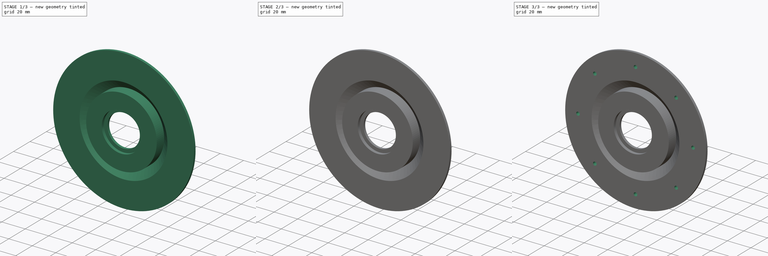
[diagram: build sequence overview — one tinted view per stage of 3, left to right]
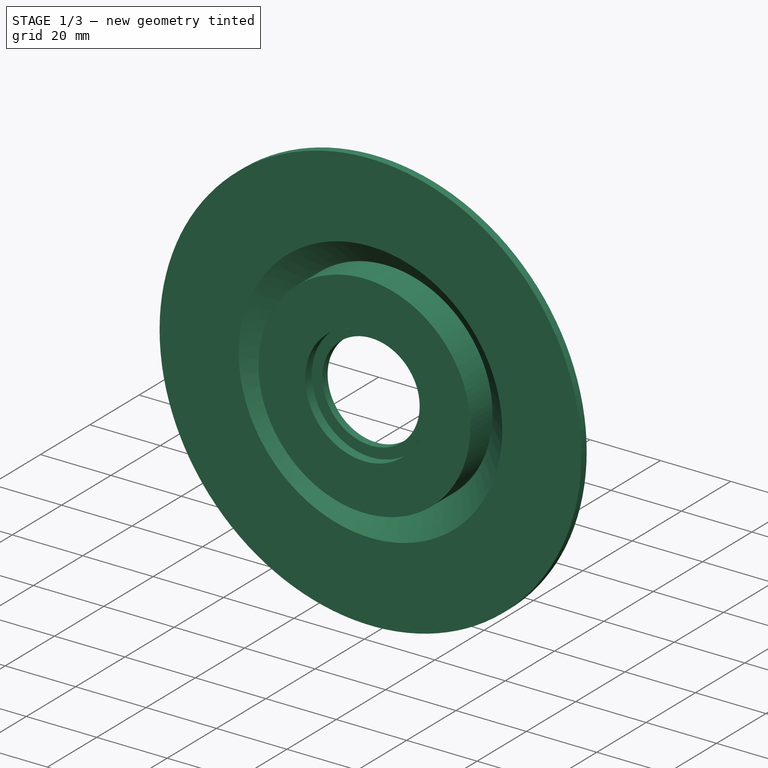
[diagram: stage 1 of 3 — iso view after this stage's code; geometry added in this stage tinted green]
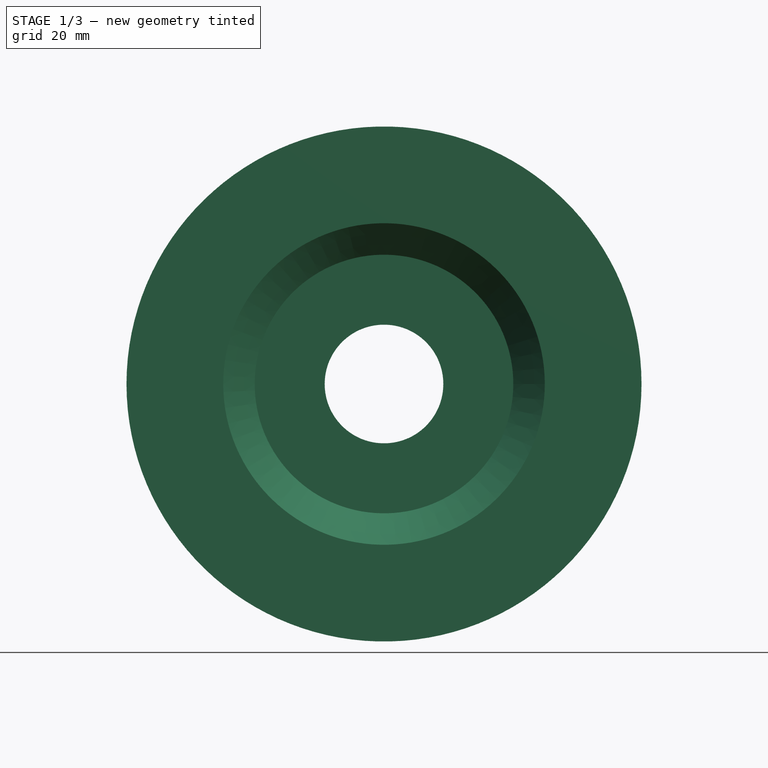
[diagram: stage 1 of 3 — front view after this stage's code; geometry added in this stage tinted green]
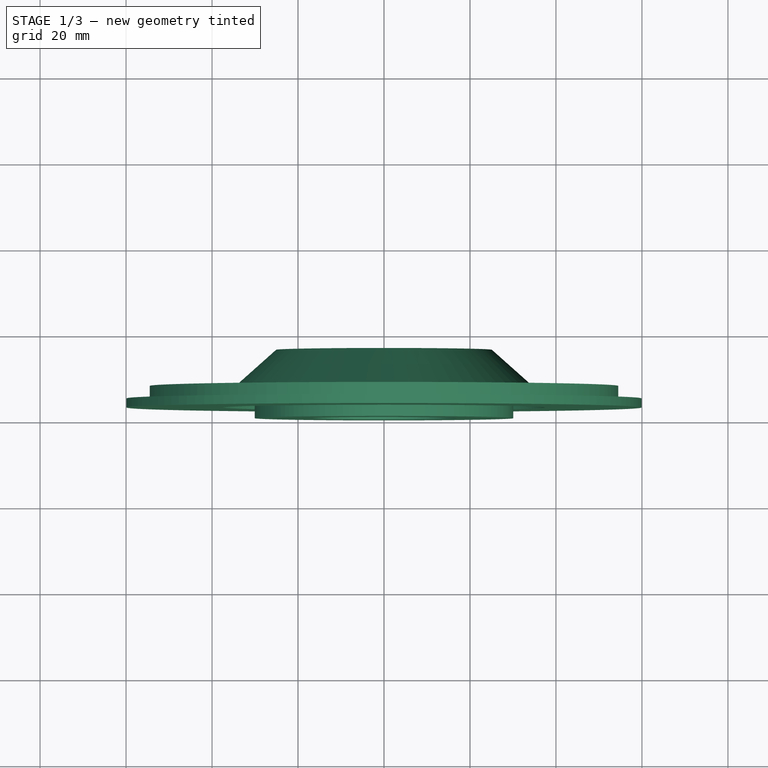
[diagram: stage 1 of 3 — top view after this stage's code; geometry added in this stage tinted green]
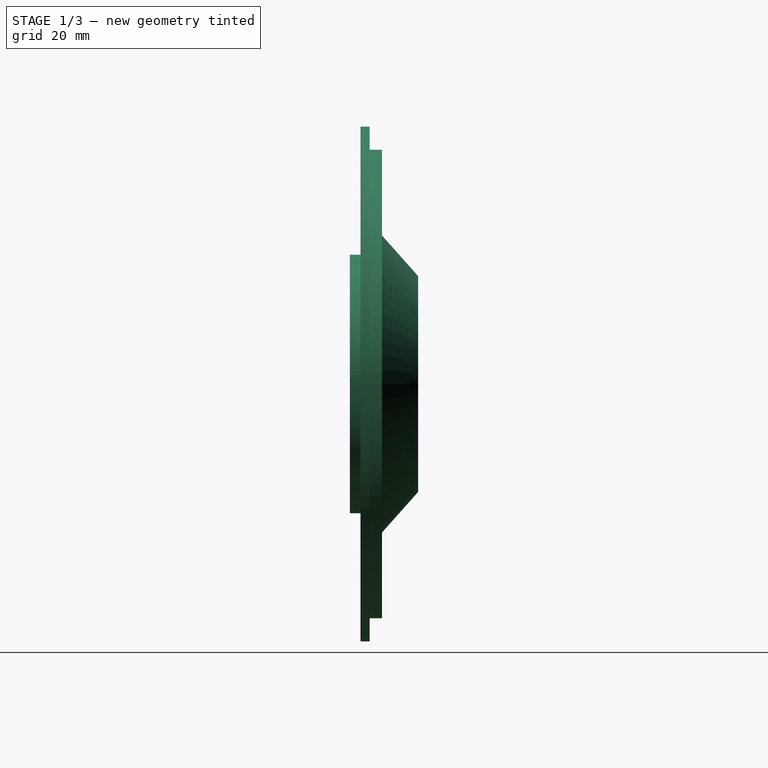
[diagram: stage 1 of 3 — right view after this stage's code; geometry added in this stage tinted green]
FCSTD DOCUMENT  (FreeCAD 0.22R35466 (Git))
Label: feeder-top_new
License: Creative Commons Attribution 4.0
LicenseURL: https://creativecommons.org/licenses/by/4.0/
objects: PartDesign::PolarPattern×2, Sketcher::SketchObject×1, PartDesign::Revolution×1, PartDesign::AdditiveCylinder×1, PartDesign::SubtractiveCylinder×1, PartDesign::Body×1, App::Part×1
note: 10 computed .brp shape members not serialized (recipe doc carries the construction recipe); baked Part::Feature solids carry a one-line shape summary decoded from their .brp

FEATURE [Sketcher::SketchObject] Sketch
  FullyConstrained = true
  MapMode = 5
  Support = -> [XY_Plane001]
  expr: Constraints[52] = 27.6 / 2
  sketch-geometry (18):
    g0: LineSegment StartX=13.8 StartY=2.7 StartZ=0 EndX=13.8 EndY=4.8 EndZ=0
    g1: LineSegment StartX=13.8 StartY=4.8 StartZ=0 EndX=15.9 EndY=4.8 EndZ=0
    g2: LineSegment StartX=15.9 StartY=4.8 StartZ=0 EndX=15.9 EndY=2.6 EndZ=0
    g3: LineSegment StartX=15.9 StartY=2.6 StartZ=0 EndX=25.1 EndY=2.6 EndZ=0
    g4: LineSegment StartX=25.1 StartY=2.6 StartZ=0 EndX=25.1 EndY=15.9 EndZ=0
    g5: LineSegment StartX=25.1 StartY=15.9 StartZ=0 EndX=37.7995 EndY=4.59855 EndZ=0
    g6: LineSegment StartX=37.7995 StartY=4.59855 StartZ=0 EndX=51.9995 EndY=4.59855 EndZ=0
    g7: LineSegment StartX=51.9995 StartY=4.59855 StartZ=0 EndX=51.9995 EndY=7.49855 EndZ=0
    g8: LineSegment StartX=51.9995 StartY=7.49855 StartZ=0 EndX=54.4995 EndY=7.49855 EndZ=0
    g9: LineSegment StartX=54.4995 StartY=7.49855 StartZ=0 EndX=54.4995 EndY=4.59855 EndZ=0
    g10: LineSegment StartX=54.4995 StartY=4.59855 StartZ=0 EndX=59.8995 EndY=4.59855 EndZ=0
    g11: LineSegment StartX=59.8995 StartY=4.59855 StartZ=0 EndX=59.8995 EndY=2.48505 EndZ=0
    g12: LineSegment StartX=59.8995 StartY=2.48505 StartZ=0 EndX=37.3995 EndY=2.48505 EndZ=0
    g13: LineSegment StartX=37.3995 StartY=2.48505 StartZ=0 EndX=30.0786 EndY=9 EndZ=0
    g14: LineSegment StartX=30.0786 StartY=9 StartZ=0 EndX=30.0786 EndY=0 EndZ=0
    g15: LineSegment StartX=30.0786 StartY=0 StartZ=0 EndX=16.8 EndY=0 EndZ=0
    g16: LineSegment StartX=16.8 StartY=0 StartZ=0 EndX=16.8 EndY=2.7 EndZ=0
    g17: LineSegment StartX=16.8 StartY=2.7 StartZ=0 EndX=13.8 EndY=2.7 EndZ=0
  constraints (54):
    c: Vertical(g0)
    c: Coincident(g0,g1)
    c: Horizontal(g1)
    c: Coincident(g1,g2)
    c: Vertical(g2)
    c: Coincident(g2,g3)
    c: Horizontal(g3)
    c: Coincident(g3,g4)
    c: Vertical(g4)
    c: Coincident(g4,g5)
    c: Coincident(g5,g6)
    c: Horizontal(g6)
    c: Coincident(g6,g7)
    c: Vertical(g7)
    c: Coincident(g7,g8)
    c: Horizontal(g8)
    c: Coincident(g8,g9)
    c: Vertical(g9)
    c: Coincident(g9,g10)
    c: Horizontal(g10)
    c: Coincident(g10,g11)
    c: Vertical(g11)
    c: Coincident(g11,g12)
    c: Horizontal(g12)
    c: Coincident(g12,g13)
    c: Coincident(g13,g14)
    c: Vertical(g14)
    c: DistanceY(g0,g0) = 2.1
    c: DistanceX(g1,g1) = 2.1
    c: DistanceY(g2,g2) = 2.2
    c: DistanceX(g3,g3) = 9.2
    c: DistanceY(g4,g4) = 13.3
    c: Distance(g5) = 17
    c: Distance(g0,g11) = 46.1
    c: DistanceX(g6,g6) = 14.2
    c: DistanceX(g8,g8) = 2.5
    c: DistanceX(g10,g10) = 5.4
    c: Equal(g9,g7)
    c: Distance(g13) = 9.8
    c: DistanceX(g12,g12) = 22.5
    c: Parallel(g13,g5)
    c: DistanceY(g14,g14) = 9
    c: Coincident(g15,g14)
    c: Horizontal(g15)
    c: Coincident(g16,g15)
    c: Vertical(g16)
    c: Coincident(g17,g16)
    c: Horizontal(g17)
    c: DistanceX(g17,g17) = 3
    c: DistanceY(g16,g16) = 2.7
    c: Coincident(g0,g17)
    c: DistanceY(g7,g7) = 2.9
    c: DistanceX(g-2,g0) = 13.8
    c: PointOnObject(g15,g-1)
FEATURE [PartDesign::Revolution] Revolution
  Angle = 360
  Angle2 = 60
  Axis = (0,1,0)
  Base = (0,0,0)
  Profile = -> Sketch
  ReferenceAxis = -> Sketch [V_Axis]
  Reversed = true
  Type = 0
FEATURE [PartDesign::AdditiveCylinder] Cylinder
  Angle = 360
  AttacherType = Attacher::AttachEngine3D
  AttachmentOffset = pos=(49,0,0) rot=(0,0,1;0rad)
  BaseFeature = -> Revolution
  FirstAngle = 0
  Height = 2.9
  MapMode = 5
  Placement = pos=(-49,4.59855,0) rot=(0,0.707107,0.707107;3.14159rad)
  Radius = 2
  SecondAngle = 0
  Support = -> [Revolution]
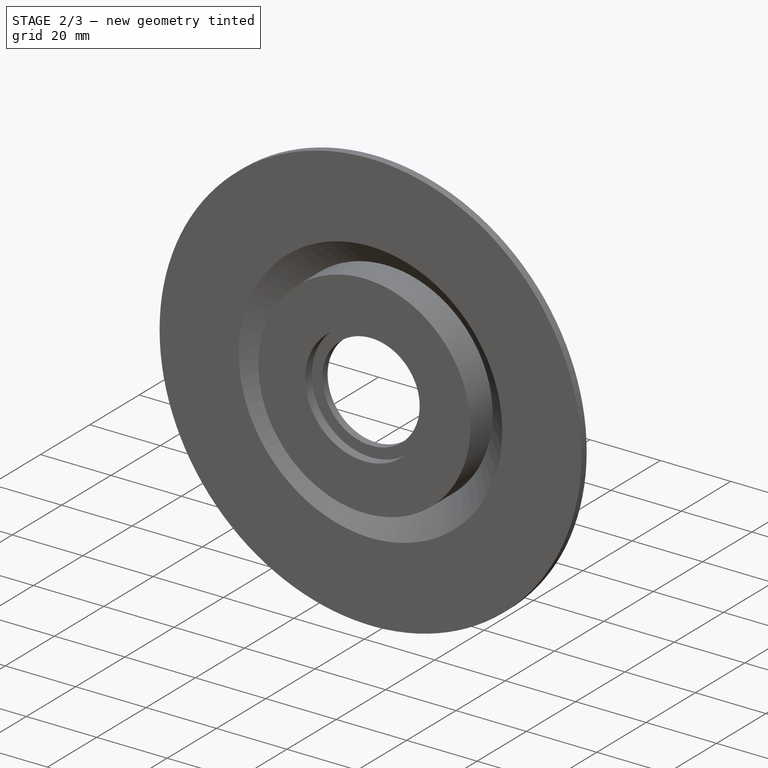
[diagram: stage 2 of 3 — iso view after this stage's code; geometry added in this stage tinted green]
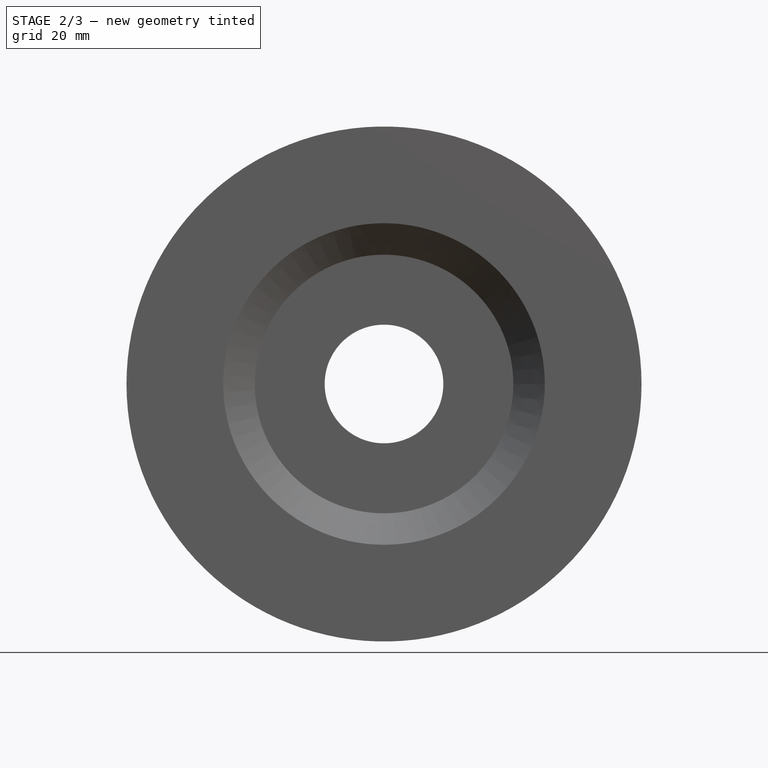
[diagram: stage 2 of 3 — front view after this stage's code; geometry added in this stage tinted green]
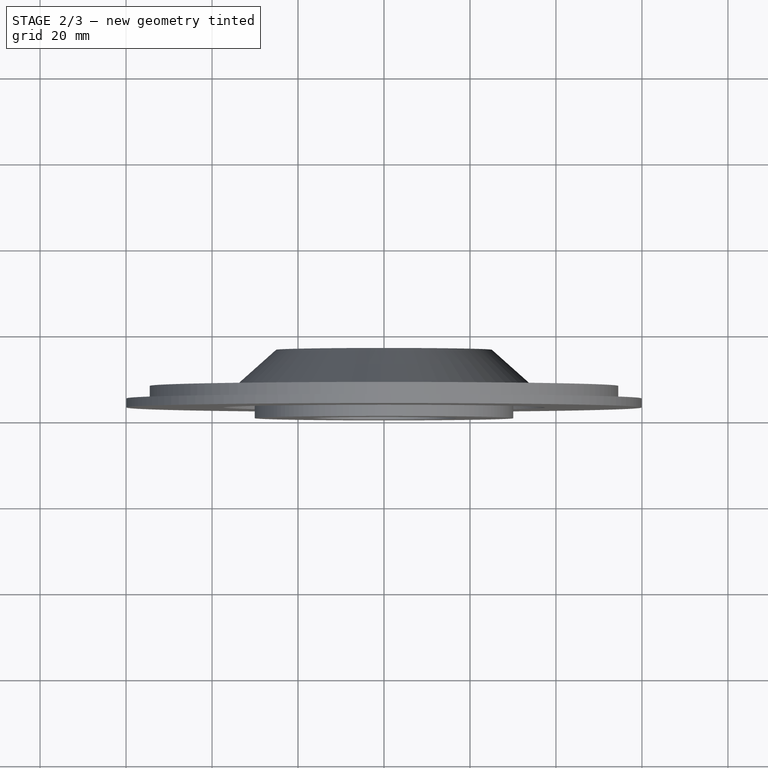
[diagram: stage 2 of 3 — top view after this stage's code; geometry added in this stage tinted green]
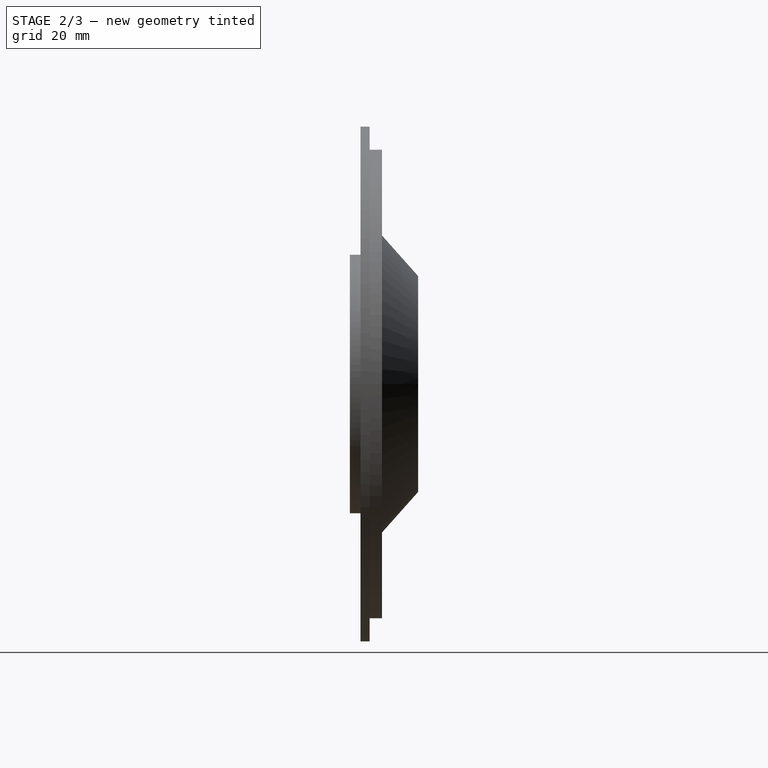
[diagram: stage 2 of 3 — right view after this stage's code; geometry added in this stage tinted green]
FEATURE [PartDesign::PolarPattern] PolarPattern
  Angle = 360
  Axis = -> Cylinder [Edge25]
  BaseFeature = -> Cylinder
  Mode = 0
  Occurrences = 8
  Offset = 120
  Originals = -> [Cylinder]
  Placement = pos=(-49,4.59855,0) rot=(0,0.707107,0.707107;3.14159rad)
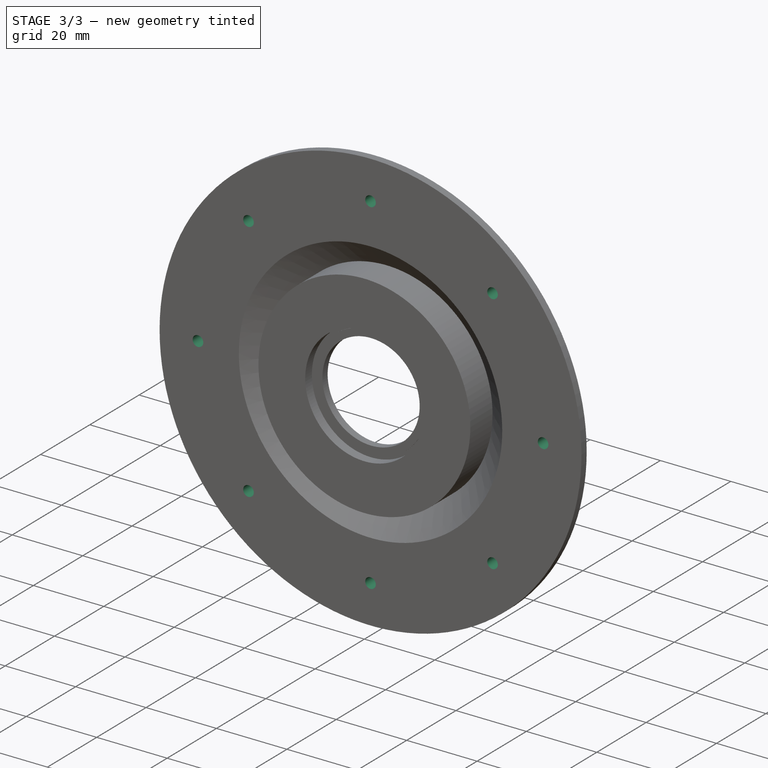
[diagram: stage 3 of 3 — iso view after this stage's code; geometry added in this stage tinted green]
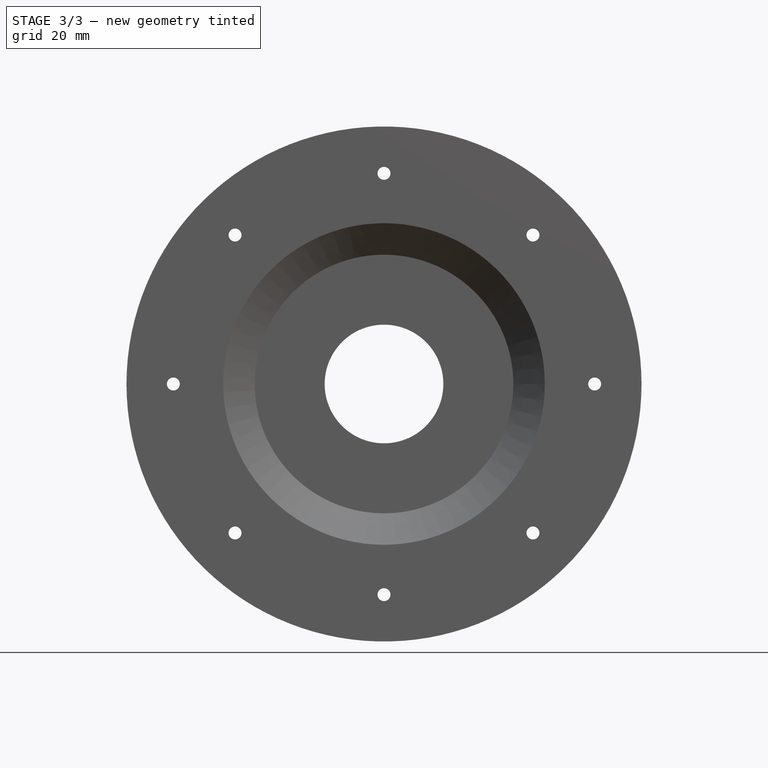
[diagram: stage 3 of 3 — front view after this stage's code; geometry added in this stage tinted green]
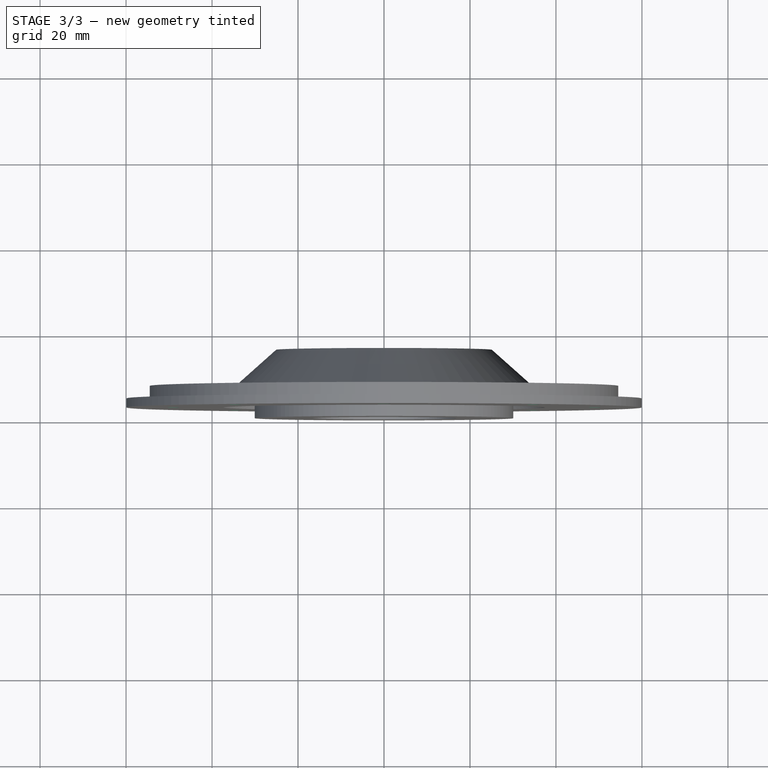
[diagram: stage 3 of 3 — top view after this stage's code; geometry added in this stage tinted green]
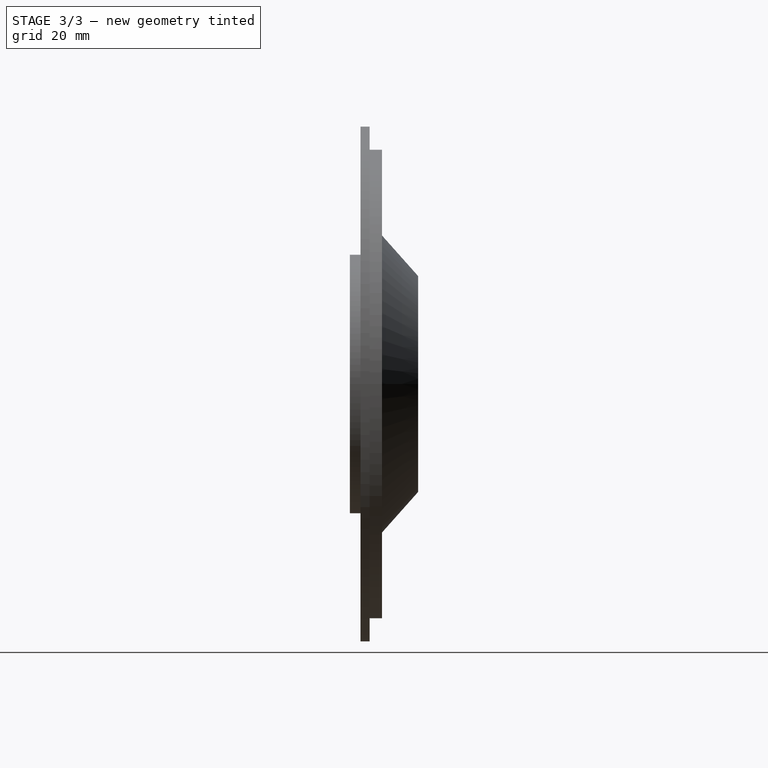
[diagram: stage 3 of 3 — right view after this stage's code; geometry added in this stage tinted green]
FEATURE [PartDesign::SubtractiveCylinder] Cylinder001
  Angle = 360
  AttacherType = Attacher::AttachEngine3D
  AttachmentOffset = pos=(0,0,-6) rot=(0,0,1;0rad)
  BaseFeature = -> PolarPattern
  FirstAngle = 0
  Height = 6
  MapMode = 11
  Placement = pos=(-49,1.49855,-6e-16) rot=(0.57735,0.57735,0.57735;4.18879rad)
  Radius = 1.5
  SecondAngle = 0
  Support = -> [Cylinder]
FEATURE [PartDesign::PolarPattern] PolarPattern001
  Angle = 360
  Axis = -> Cylinder001 [Edge35]
  BaseFeature = -> Cylinder001
  Mode = 0
  Occurrences = 8
  Offset = 120
  Originals = -> [Cylinder001]
  Placement = pos=(-49,1.49855,-6e-16) rot=(0.57735,0.57735,0.57735;4.18879rad)
FEATURE [PartDesign::Body] Body
  Group = -> [Sketch,Revolution,Cylinder,PolarPattern,Cylinder001,PolarPattern001]
  Origin = -> Origin001
  Tip = -> PolarPattern001
FEATURE [App::Part] Part
  Group = -> [Body]
  Origin = -> Origin
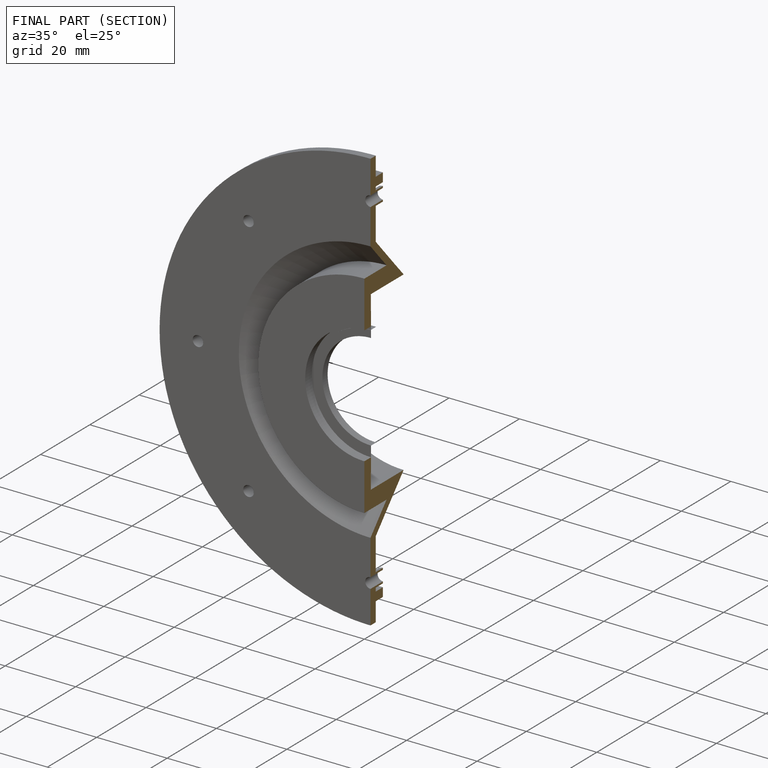
[diagram: finished part — half-section view (interior)]
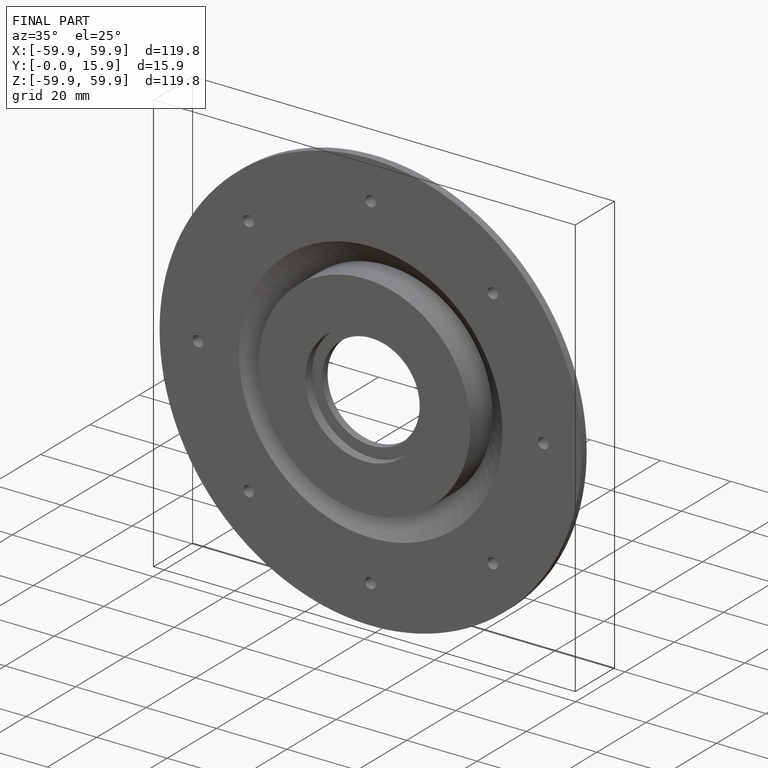
[diagram: finished part — iso view with bounding-box wireframe]
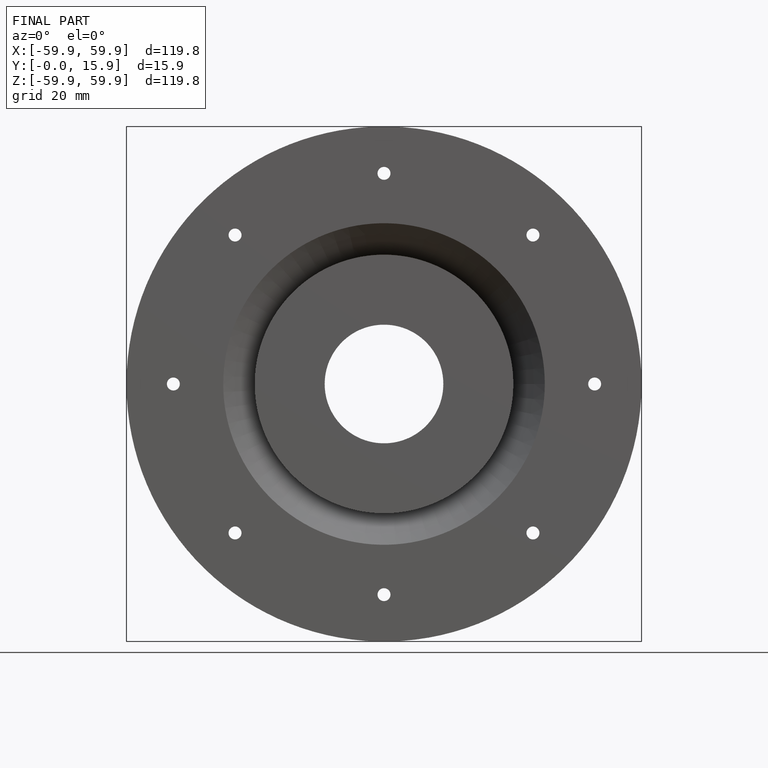
[diagram: finished part — front view with bounding-box wireframe]
